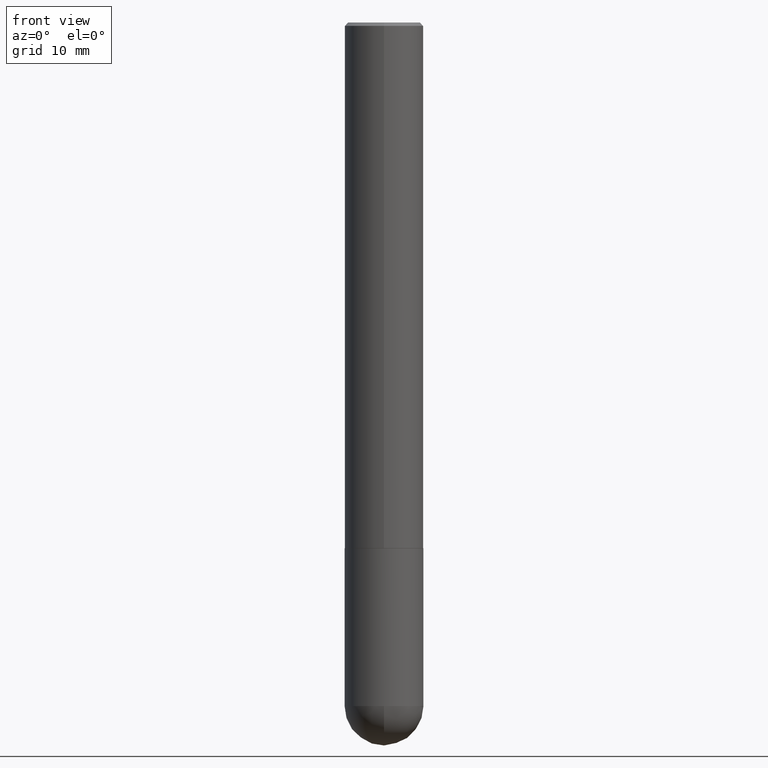
[diagram: clean part render]
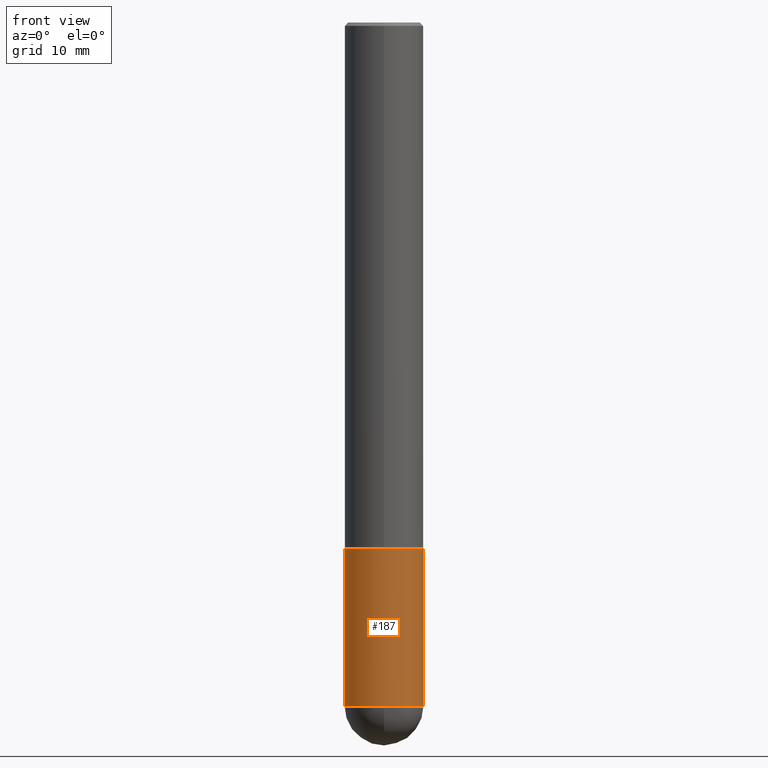
[diagram: same view with one face highlighted and labeled with its STEP entity id]
A machine part, front view. The second image highlights one B-rep face of the part: STEP entity #187.
In plain terms, the highlighted cylindrical surface (partial cylindrical patch) has radius 5.9995 mm, axis along (-0, 0, 1).
Its self-contained STEP definition (entity closure, byte-faithful):
#7 = LINE ( 'NONE', #98, #215 ) ;
#36 = AXIS2_PLACEMENT_3D ( 'NONE', #138, #172, #60 ) ;
#45 = AXIS2_PLACEMENT_3D ( 'NONE', #309, #276, #406 ) ;
#48 = EDGE_CURVE ( 'NONE', #177, #133, #318, .T. ) ;
#58 = CIRCLE ( 'NONE', #45, 0.2361999999999999933 ) ;
#60 = DIRECTION ( 'NONE',  ( 1.000000000000000000, -6.982962677686265133E-15, 0.000000000000000000 ) ) ;
#67 = ORIENTED_EDGE ( 'NONE', *, *, #242, .T. ) ;
#71 = VERTEX_POINT ( 'NONE', #132 ) ;
#82 = DIRECTION ( 'NONE',  ( 1.000000000000000000, -6.982962677686266711E-15, 4.876176775795936353E-29 ) ) ;
#84 = LINE ( 'NONE', #217, #157 ) ;
#86 = CIRCLE ( 'NONE', #36, 0.2361999999999999933 ) ;
#98 = CARTESIAN_POINT ( 'NONE',  ( -0.2361999999999999933, 1.678301941865356591E-15, -1.161852468318208757E-29 ) ) ;
#108 = AXIS2_PLACEMENT_3D ( 'NONE', #353, #328, #330 ) ;
#122 = CARTESIAN_POINT ( 'NONE',  ( -1.678301941865258773E-15, -0.2362000000000146760, -4.094499999999999140 ) ) ;
#129 = CARTESIAN_POINT ( 'NONE',  ( 0.2361999999999999933, -1.264614540928986883E-14, -3.149600000000000399 ) ) ;
#132 = CARTESIAN_POINT ( 'NONE',  ( 0.2361999999999999933, -1.429569576782631264E-14, -4.094500000000000028 ) ) ;
#133 = VERTEX_POINT ( 'NONE', #129 ) ;
#138 = CARTESIAN_POINT ( 'NONE',  ( 1.001297202692504215E-28, -1.429587034189326149E-14, -4.094500000000000028 ) ) ;
#145 = EDGE_CURVE ( 'NONE', #355, #228, #86, .T. ) ;
#152 = AXIS2_PLACEMENT_3D ( 'NONE', #337, #367, #82 ) ;
#157 = VECTOR ( 'NONE', #188, 39.37007874015748143 ) ;
#172 = DIRECTION ( 'NONE',  ( -2.445468806185136597E-29, 3.491481338843145583E-15, 1.000000000000000000 ) ) ;
#177 = VERTEX_POINT ( 'NONE', #288 ) ;
#185 = EDGE_CURVE ( 'NONE', #355, #177, #7, .T. ) ;
#187 = ADVANCED_FACE ( 'NONE', ( #233 ), #316, .T. ) ;
#188 = DIRECTION ( 'NONE',  ( -2.445468806185136877E-29, 3.491481338843145188E-15, 1.000000000000000000 ) ) ;
#210 = ORIENTED_EDGE ( 'NONE', *, *, #48, .F. ) ;
#215 = VECTOR ( 'NONE', #263, 39.37007874015748143 ) ;
#217 = CARTESIAN_POINT ( 'NONE',  ( 0.2361999999999999933, -1.649375784469496131E-15, 1.151752954443000088E-29 ) ) ;
#224 = EDGE_CURVE ( 'NONE', #228, #71, #58, .T. ) ;
#228 = VERTEX_POINT ( 'NONE', #122 ) ;
#233 = FACE_OUTER_BOUND ( 'NONE', #274, .T. ) ;
#242 = EDGE_CURVE ( 'NONE', #71, #133, #84, .T. ) ;
#251 = CARTESIAN_POINT ( 'NONE',  ( -0.2361999999999999933, -1.096801804149146287E-14, -4.094500000000000028 ) ) ;
#263 = DIRECTION ( 'NONE',  ( -2.445468806185136877E-29, 3.491481338843145188E-15, 1.000000000000000000 ) ) ;
#268 = ORIENTED_EDGE ( 'NONE', *, *, #185, .F. ) ;
#274 = EDGE_LOOP ( 'NONE', ( #268, #404, #335, #67, #210 ) ) ;
#276 = DIRECTION ( 'NONE',  ( -2.445468806185136597E-29, 3.491481338843145583E-15, 1.000000000000000000 ) ) ;
#288 = CARTESIAN_POINT ( 'NONE',  ( -0.2361999999999999933, -1.096801804149146130E-14, -3.149600000000000399 ) ) ;
#309 = CARTESIAN_POINT ( 'NONE',  ( 1.001297202692504215E-28, -1.429587034189326149E-14, -4.094500000000000028 ) ) ;
#316 = CYLINDRICAL_SURFACE ( 'NONE', #152, 0.2361999999999999933 ) ;
#318 = CIRCLE ( 'NONE', #108, 0.2361999999999999933 ) ;
#328 = DIRECTION ( 'NONE',  ( -2.445468806185136597E-29, 3.491481338843145583E-15, 1.000000000000000000 ) ) ;
#330 = DIRECTION ( 'NONE',  ( 1.000000000000000000, -6.982962677686265133E-15, 0.000000000000000000 ) ) ;
#335 = ORIENTED_EDGE ( 'NONE', *, *, #224, .T. ) ;
#337 = CARTESIAN_POINT ( 'NONE',  ( 0.000000000000000000, 0.000000000000000000, 0.000000000000000000 ) ) ;
#353 = CARTESIAN_POINT ( 'NONE',  ( 7.702248551960706711E-29, -1.099676962482037231E-14, -3.149600000000000399 ) ) ;
#355 = VERTEX_POINT ( 'NONE', #251 ) ;
#367 = DIRECTION ( 'NONE',  ( -2.445468806185136597E-29, 3.491481338843145583E-15, 1.000000000000000000 ) ) ;
#404 = ORIENTED_EDGE ( 'NONE', *, *, #145, .T. ) ;
#406 = DIRECTION ( 'NONE',  ( 1.000000000000000000, -6.982962677686265133E-15, 0.000000000000000000 ) ) ;